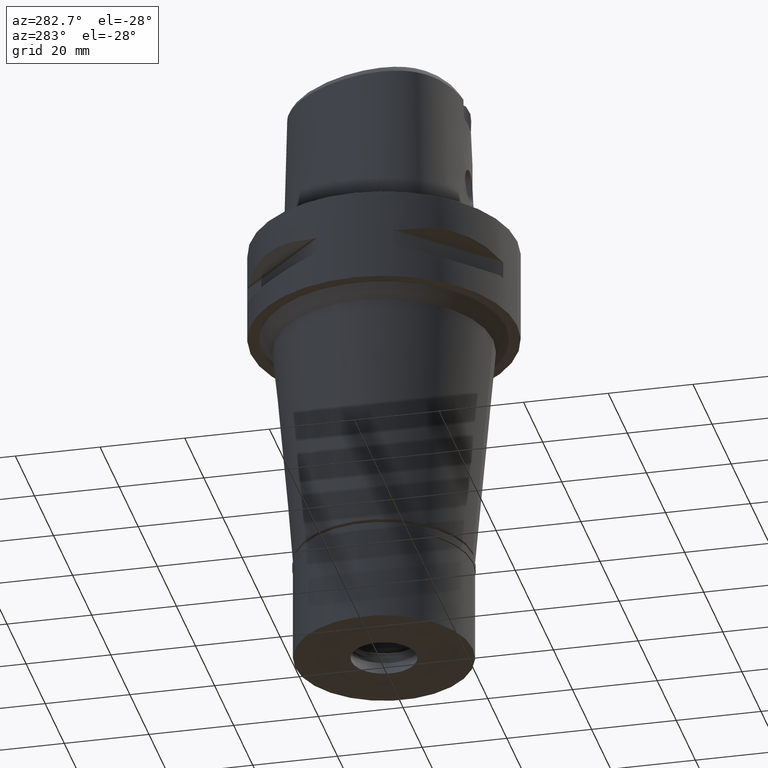
[diagram: clean part render]
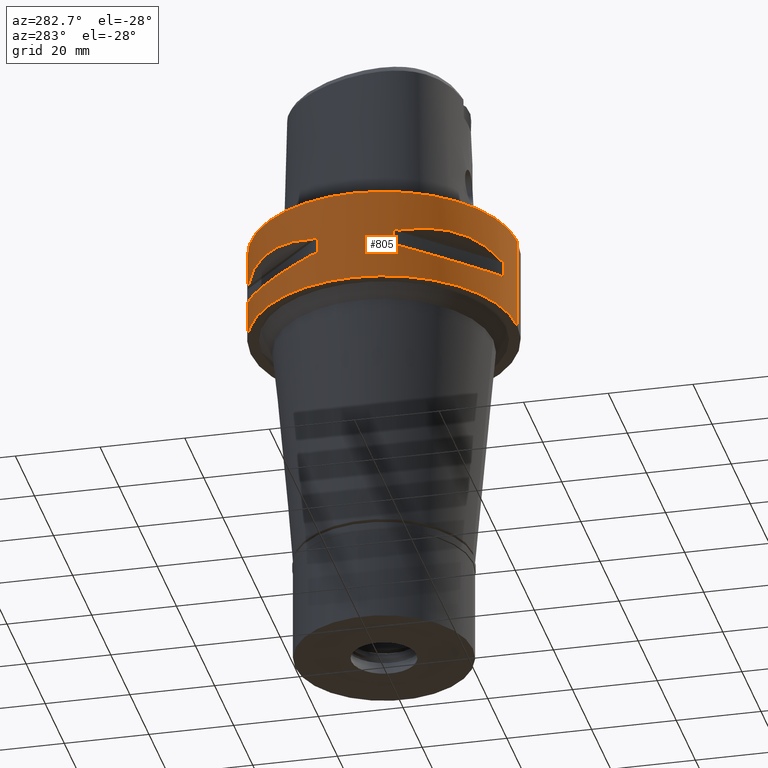
[diagram: same view with one face highlighted and labeled with its STEP entity id]
A machine part, auxiliary view. The second image highlights one B-rep face of the part: STEP entity #805.
In plain terms, the highlighted cylindrical surface (partial cylindrical patch) has radius 31.5 mm, axis along (0, 0, -1).
Its self-contained STEP definition (entity closure, byte-faithful):
#9 = VERTEX_POINT ( 'NONE', #4185 ) ;
#16 = LINE ( 'NONE', #1519, #2029 ) ;
#18 = CARTESIAN_POINT ( 'NONE',  ( -25.43927894891607622, 18.59229662064853983, -15.62866126334269623 ) ) ;
#45 = CARTESIAN_POINT ( 'NONE',  ( -18.86897208073744991, 25.32725744467937545, -15.69588095933747240 ) ) ;
#116 = EDGE_CURVE ( 'NONE', #3624, #4527, #4784, .T. ) ;
#164 = AXIS2_PLACEMENT_3D ( 'NONE', #1711, #4404, #1757 ) ;
#171 = AXIS2_PLACEMENT_3D ( 'NONE', #2725, #1590, #379 ) ;
#191 = EDGE_CURVE ( 'NONE', #2722, #2844, #1849, .T. ) ;
#194 = B_SPLINE_CURVE_WITH_KNOTS ( 'NONE', 3,
 ( #4942, #3792, #4602, #3414, #3390, #3011, #1505, #4147, #4171, #3033, #1480, #1142, #685, #4557, #2689, #3438, #4966, #1452, #325, #4216, #1525, #708, #3369, #278 ),
 .UNSPECIFIED., .F., .F.,
 ( 4, 1, 1, 1, 1, 1, 2, 2, 2, 1, 1, 1, 1, 1, 2, 2, 4 ),
 ( 0.0000000000000000000, 0.1250000000000055511, 0.1875000000000083267, 0.2187500000000097977, 0.2343750000000106304, 0.2421875000000108247, 0.2460937500000108524, 0.2500000000000108802, 0.5000000000000087708, 0.6250000000000075495, 0.6875000000000071054, 0.7187500000000067724, 0.7343750000000066613, 0.7421875000000065503, 0.7460937500000062172, 0.7500000000000059952, 1.000000000000000000 ),
 .UNSPECIFIED. ) ;
#229 = CARTESIAN_POINT ( 'NONE',  ( -8.981198972019999616, 30.19251670572000279, -9.950000000000001066 ) ) ;
#256 = CARTESIAN_POINT ( 'NONE',  ( -12.70092055730904868, 28.92474506844683901, -9.353547358226721897 ) ) ;
#278 = CARTESIAN_POINT ( 'NONE',  ( -10.44775724750000023, -29.71690375017999841, -14.05000000000000071 ) ) ;
#287 = CARTESIAN_POINT ( 'NONE',  ( -25.37277178159835955, -18.81455742174598456, -8.309746333092055792 ) ) ;
#325 = CARTESIAN_POINT ( 'NONE',  ( -17.05047092244293694, -26.48642424310493837, -15.42670883407686588 ) ) ;
#340 = DIRECTION ( 'NONE',  ( 0.0000000000000000000, 0.0000000000000000000, -1.000000000000000000 ) ) ;
#362 = CARTESIAN_POINT ( 'NONE',  ( -26.48642424310458665, 17.05047092244234008, -15.42670883407647509 ) ) ;
#379 = DIRECTION ( 'NONE',  ( -0.9584925938322735872, 0.2851174276831918153, 0.0000000000000000000 ) ) ;
#420 = EDGE_CURVE ( 'NONE', #1894, #2931, #2311, .T. ) ;
#451 = B_SPLINE_CURVE_WITH_KNOTS ( 'NONE', 3,
 ( #3811, #1897, #4595, #3502, #1214, #750, #3451, #2350, #2655, #1137, #45, #3092, #3916, #2685, #18, #2324, #4212, #3836, #362, #3859, #1998, #2731, #1918, #1598 ),
 .UNSPECIFIED., .F., .F.,
 ( 4, 1, 1, 1, 1, 1, 2, 2, 2, 1, 1, 1, 1, 1, 2, 2, 4 ),
 ( 0.0000000000000000000, 0.1249999999999950040, 0.1874999999999924505, 0.2187499999999911737, 0.2343749999999902855, 0.2421874999999899802, 0.2460937499999900080, 0.2499999999999900080, 0.4999999999999917843, 0.6249999999999925615, 0.6874999999999925615, 0.7187499999999924505, 0.7343749999999926725, 0.7421874999999927836, 0.7460937499999928946, 0.7499999999999931166, 1.000000000000000000 ),
 .UNSPECIFIED. ) ;
#490 = EDGE_CURVE ( 'NONE', #2482, #1703, #972, .T. ) ;
#533 = CARTESIAN_POINT ( 'NONE',  ( -18.81455742163205613, 25.37277178168287151, -8.309746333127383977 ) ) ;
#561 = DIRECTION ( 'NONE',  ( 0.0000000000000000000, 0.0000000000000000000, -1.000000000000000000 ) ) ;
#579 = ORIENTED_EDGE ( 'NONE', *, *, #4963, .T. ) ;
#589 = CARTESIAN_POINT ( 'NONE',  ( -23.90617837147178193, 20.64154884328073081, -8.160613588465007950 ) ) ;
#605 = AXIS2_PLACEMENT_3D ( 'NONE', #4842, #2978, #2542 ) ;
#635 = AXIS2_PLACEMENT_3D ( 'NONE', #4302, #761, #3059 ) ;
#671 = CARTESIAN_POINT ( 'NONE',  ( -27.88214534463898175, -14.84422749211551640, -8.906206096462614852 ) ) ;
#672 = CYLINDRICAL_SURFACE ( 'NONE', #3703, 31.50000000000000000 ) ;
#682 = CARTESIAN_POINT ( 'NONE',  ( -10.44775724750000023, -29.71690375017999841, -9.949999999998999201 ) ) ;
#685 = CARTESIAN_POINT ( 'NONE',  ( -21.46242677078364025, -23.08532645888299939, -15.83938991065501867 ) ) ;
#699 = B_SPLINE_CURVE_WITH_KNOTS ( 'NONE', 3,
 ( #4110, #1745, #671, #287, #4811, #1363, #4443, #989, #2156, #1767 ),
 .UNSPECIFIED., .F., .F.,
 ( 4, 2, 2, 2, 4 ),
 ( 0.0000000000000000000, 0.2500000000000000000, 0.5000000000000000000, 0.7500000000000000000, 1.000000000000000000 ),
 .UNSPECIFIED. ) ;
#708 = CARTESIAN_POINT ( 'NONE',  ( -14.89252659053665440, -27.86285265927818600, -15.10765629750852135 ) ) ;
#723 = CARTESIAN_POINT ( 'NONE',  ( 0.0000000000000000000, 31.50000000000000000, -22.00000000000000000 ) ) ;
#750 = CARTESIAN_POINT ( 'NONE',  ( -16.48208282228564769, 26.84474411198887012, -15.34094883777873619 ) ) ;
#761 = DIRECTION ( 'NONE',  ( 0.0000000000000000000, 0.0000000000000000000, -1.000000000000000000 ) ) ;
#780 = VECTOR ( 'NONE', #4736, 1000.000000000000000 ) ;
#805 = ADVANCED_FACE ( 'NONE', ( #1818, #1063, #2628 ), #672, .T. ) ;
#852 = VERTEX_POINT ( 'NONE', #4111 ) ;
#887 = VERTEX_POINT ( 'NONE', #4677 ) ;
#942 = CARTESIAN_POINT ( 'NONE',  ( -29.71690375017999841, -10.44775724750000023, -14.05000000000000071 ) ) ;
#968 = ORIENTED_EDGE ( 'NONE', *, *, #4893, .T. ) ;
#972 = CIRCLE ( 'NONE', #635, 31.50000000000000711 ) ;
#989 = CARTESIAN_POINT ( 'NONE',  ( -14.84430321566181910, -27.88210502990660444, -8.906184732002360604 ) ) ;
#1024 = CARTESIAN_POINT ( 'NONE',  ( -10.44775724750000023, -29.71690375017999841, -14.05000000000000071 ) ) ;
#1037 = DIRECTION ( 'NONE',  ( 0.0000000000000000000, -1.000000000000000000, 0.0000000000000000000 ) ) ;
#1051 = AXIS2_PLACEMENT_3D ( 'NONE', #1122, #1431, #4970 ) ;
#1063 = FACE_BOUND ( 'NONE', #4629, .T. ) ;
#1112 = EDGE_CURVE ( 'NONE', #4025, #887, #3785, .T. ) ;
#1122 = CARTESIAN_POINT ( 'NONE',  ( 0.0000000000000000000, 1.284348330606000068E-14, -14.05000000000000071 ) ) ;
#1132 = DIRECTION ( 'NONE',  ( 0.0000000000000000000, 0.0000000000000000000, 1.000000000000000000 ) ) ;
#1136 = LINE ( 'NONE', #1896, #1458 ) ;
#1137 = CARTESIAN_POINT ( 'NONE',  ( -16.89910283486545950, 26.58330558444438907, -15.40446471307224030 ) ) ;
#1142 = CARTESIAN_POINT ( 'NONE',  ( -23.89673728055121416, -20.65093790435243193, -15.83935804901394739 ) ) ;
#1171 = ORIENTED_EDGE ( 'NONE', *, *, #4722, .T. ) ;
#1180 = AXIS2_PLACEMENT_3D ( 'NONE', #4777, #2572, #1327 ) ;
#1198 = DIRECTION ( 'NONE',  ( 0.0000000000000000000, 0.0000000000000000000, -1.000000000000000000 ) ) ;
#1209 = CARTESIAN_POINT ( 'NONE',  ( -10.44775724750000023, 29.71690375017999841, -14.05000000000000071 ) ) ;
#1214 = CARTESIAN_POINT ( 'NONE',  ( -16.03138450077636534, 27.11872488589498786, -15.26880420107476333 ) ) ;
#1273 = EDGE_CURVE ( 'NONE', #3233, #887, #2121, .T. ) ;
#1285 = CARTESIAN_POINT ( 'NONE',  ( 0.0000000000000000000, 1.284348330606000068E-14, -9.950000000000001066 ) ) ;
#1304 = EDGE_CURVE ( 'NONE', #3233, #3672, #1708, .T. ) ;
#1305 = CIRCLE ( 'NONE', #4200, 31.50000000000000000 ) ;
#1327 = DIRECTION ( 'NONE',  ( -0.9433937698468619626, 0.3316748332540863653, 0.0000000000000000000 ) ) ;
#1355 = CARTESIAN_POINT ( 'NONE',  ( -28.92472615205409170, 12.70097436183466932, -9.353533115206117188 ) ) ;
#1363 = CARTESIAN_POINT ( 'NONE',  ( -20.64154884321404637, -23.90617837153842729, -8.160613588488562442 ) ) ;
#1371 = VECTOR ( 'NONE', #1198, 1000.000000000000000 ) ;
#1401 = CARTESIAN_POINT ( 'NONE',  ( -30.19251670572000279, 8.981198972019999616, -14.05000000000000071 ) ) ;
#1431 = DIRECTION ( 'NONE',  ( 0.0000000000000000000, 0.0000000000000000000, -1.000000000000000000 ) ) ;
#1452 = CARTESIAN_POINT ( 'NONE',  ( -17.14106442934810204, -26.42800887047570058, -15.43984550238532982 ) ) ;
#1458 = VECTOR ( 'NONE', #340, 1000.000000000000000 ) ;
#1480 = CARTESIAN_POINT ( 'NONE',  ( -25.32725744469575702, -18.86897208070564247, -15.69588095933118943 ) ) ;
#1489 = CARTESIAN_POINT ( 'NONE',  ( 0.0000000000000000000, 1.284348330606000068E-14, 4.875000000000000000 ) ) ;
#1505 = CARTESIAN_POINT ( 'NONE',  ( -26.70521063584532229, -16.70616724745790549, -15.37546661817682292 ) ) ;
#1519 = CARTESIAN_POINT ( 'NONE',  ( -8.981198972017999438, -30.19251670572000279, -14.05000000000000071 ) ) ;
#1525 = CARTESIAN_POINT ( 'NONE',  ( -16.96123479564984748, -26.54368690921626950, -15.41365572341332424 ) ) ;
#1536 = ORIENTED_EDGE ( 'NONE', *, *, #1112, .T. ) ;
#1558 = EDGE_LOOP ( 'NONE', ( #579, #1974, #1171, #2916 ) ) ;
#1590 = DIRECTION ( 'NONE',  ( 0.0000000000000000000, 0.0000000000000000000, -1.000000000000000000 ) ) ;
#1598 = CARTESIAN_POINT ( 'NONE',  ( -29.71690375017999841, 10.44775724750000023, -14.05000000000000071 ) ) ;
#1703 = VERTEX_POINT ( 'NONE', #4379 ) ;
#1708 = CIRCLE ( 'NONE', #164, 31.50000000000001776 ) ;
#1711 = CARTESIAN_POINT ( 'NONE',  ( 0.0000000000000000000, 1.284348330606000068E-14, -9.950000000000001066 ) ) ;
#1735 = CARTESIAN_POINT ( 'NONE',  ( -14.84422749199032943, 27.88214534470565198, -8.906206096497943037 ) ) ;
#1745 = CARTESIAN_POINT ( 'NONE',  ( -28.92474506841556092, -12.70092055739798553, -9.353547358203169182 ) ) ;
#1757 = DIRECTION ( 'NONE',  ( -0.2851174276831918153, 0.9584925938322735872, 0.0000000000000000000 ) ) ;
#1763 = AXIS2_PLACEMENT_3D ( 'NONE', #1285, #2923, #4041 ) ;
#1767 = CARTESIAN_POINT ( 'NONE',  ( -10.44775724750000023, -29.71690375017999841, -9.949999999998999201 ) ) ;
#1807 = CARTESIAN_POINT ( 'NONE',  ( 0.0000000000000000000, 31.50000000000000000, 0.0000000000000000000 ) ) ;
#1818 = FACE_OUTER_BOUND ( 'NONE', #1558, .T. ) ;
#1833 = VECTOR ( 'NONE', #561, 1000.000000000000000 ) ;
#1849 = CIRCLE ( 'NONE', #1763, 31.50000000000001776 ) ;
#1890 = EDGE_CURVE ( 'NONE', #2722, #1703, #4435, .T. ) ;
#1894 = VERTEX_POINT ( 'NONE', #1807 ) ;
#1896 = CARTESIAN_POINT ( 'NONE',  ( 0.0000000000000000000, -31.50000000000000000, 0.0000000000000000000 ) ) ;
#1897 = CARTESIAN_POINT ( 'NONE',  ( -11.58970337493613378, 29.31542262584994418, -14.35229357166721265 ) ) ;
#1918 = CARTESIAN_POINT ( 'NONE',  ( -28.91382665368626093, 12.73197616788979047, -14.65467361754097197 ) ) ;
#1974 = ORIENTED_EDGE ( 'NONE', *, *, #3894, .F. ) ;
#1998 = CARTESIAN_POINT ( 'NONE',  ( -26.54368690921649687, 16.96123479564916892, -15.41365572341313239 ) ) ;
#2019 = VERTEX_POINT ( 'NONE', #1024 ) ;
#2029 = VECTOR ( 'NONE', #3025, 1000.000000000000000 ) ;
#2052 = EDGE_CURVE ( 'NONE', #3366, #4527, #4239, .T. ) ;
#2081 = EDGE_LOOP ( 'NONE', ( #2591, #4486, #2700, #4473, #3698, #4292, #2547, #4841 ) ) ;
#2102 = EDGE_CURVE ( 'NONE', #3672, #3366, #4287, .T. ) ;
#2121 = LINE ( 'NONE', #4006, #3223 ) ;
#2135 = DIRECTION ( 'NONE',  ( -0.3316748332540863653, -0.9433937698468619626, 0.0000000000000000000 ) ) ;
#2146 = CARTESIAN_POINT ( 'NONE',  ( -29.71690375017999841, 10.44775724750000023, -9.949999999998999201 ) ) ;
#2149 = EDGE_CURVE ( 'NONE', #2482, #2019, #194, .T. ) ;
#2155 = CARTESIAN_POINT ( 'NONE',  ( -29.71690375017999841, 10.44775724750000023, -14.05000000000000071 ) ) ;
#2156 = CARTESIAN_POINT ( 'NONE',  ( -12.70097436174568983, -28.92472615208535558, -9.353533115229669903 ) ) ;
#2182 = DIRECTION ( 'NONE',  ( 0.0000000000000000000, 0.0000000000000000000, 1.000000000000000000 ) ) ;
#2225 = DIRECTION ( 'NONE',  ( 0.0000000000000000000, 0.0000000000000000000, -1.000000000000000000 ) ) ;
#2311 = LINE ( 'NONE', #3543, #1371 ) ;
#2324 = CARTESIAN_POINT ( 'NONE',  ( -26.01217882834653139, 17.76952662671834915, -15.52665221626015501 ) ) ;
#2350 = CARTESIAN_POINT ( 'NONE',  ( -16.80193241490443157, 26.64486562695815053, -15.38992683735661515 ) ) ;
#2399 = VERTEX_POINT ( 'NONE', #4000 ) ;
#2482 = VERTEX_POINT ( 'NONE', #942 ) ;
#2530 = CARTESIAN_POINT ( 'NONE',  ( -25.37272068398780434, 18.81462633032050746, -8.309724968596480466 ) ) ;
#2542 = DIRECTION ( 'NONE',  ( -0.2851174276831918153, -0.9584925938322735872, 0.0000000000000000000 ) ) ;
#2547 = ORIENTED_EDGE ( 'NONE', *, *, #191, .T. ) ;
#2572 = DIRECTION ( 'NONE',  ( 0.0000000000000000000, 0.0000000000000000000, 1.000000000000000000 ) ) ;
#2591 = ORIENTED_EDGE ( 'NONE', *, *, #4750, .T. ) ;
#2628 = FACE_BOUND ( 'NONE', #2081, .T. ) ;
#2631 = CIRCLE ( 'NONE', #605, 31.50000000000001776 ) ;
#2655 = CARTESIAN_POINT ( 'NONE',  ( -16.86571563436579169, 26.60451452154777030, -15.39949295785988426 ) ) ;
#2661 = EDGE_CURVE ( 'NONE', #2399, #2019, #2631, .T. ) ;
#2685 = CARTESIAN_POINT ( 'NONE',  ( -24.23018836745279714, 20.18579225685798306, -15.78559396978850415 ) ) ;
#2689 = CARTESIAN_POINT ( 'NONE',  ( -18.59229662065495958, -25.43927894891979946, -15.62866126334684580 ) ) ;
#2700 = ORIENTED_EDGE ( 'NONE', *, *, #2661, .T. ) ;
#2722 = VERTEX_POINT ( 'NONE', #4863 ) ;
#2725 = CARTESIAN_POINT ( 'NONE',  ( 0.0000000000000000000, 1.284348330606000068E-14, -14.05000000000000071 ) ) ;
#2731 = CARTESIAN_POINT ( 'NONE',  ( -27.86285265926284893, 14.89252659058025685, -15.10765629752004813 ) ) ;
#2774 = ORIENTED_EDGE ( 'NONE', *, *, #1304, .T. ) ;
#2844 = VERTEX_POINT ( 'NONE', #3069 ) ;
#2916 = ORIENTED_EDGE ( 'NONE', *, *, #420, .T. ) ;
#2923 = DIRECTION ( 'NONE',  ( 0.0000000000000000000, 0.0000000000000000000, 1.000000000000000000 ) ) ;
#2931 = VERTEX_POINT ( 'NONE', #723 ) ;
#2975 = CARTESIAN_POINT ( 'NONE',  ( 0.0000000000000000000, 1.284348330606000068E-14, 0.0000000000000000000 ) ) ;
#2978 = DIRECTION ( 'NONE',  ( 0.0000000000000000000, 0.0000000000000000000, -1.000000000000000000 ) ) ;
#3011 = CARTESIAN_POINT ( 'NONE',  ( -26.84474411198783628, -16.48208282228858224, -15.34094883777952667 ) ) ;
#3025 = DIRECTION ( 'NONE',  ( 0.0000000000000000000, 0.0000000000000000000, 1.000000000000000000 ) ) ;
#3033 = CARTESIAN_POINT ( 'NONE',  ( -26.58330558444411906, -16.89910283486596754, -15.40446471307235754 ) ) ;
#3059 = DIRECTION ( 'NONE',  ( -0.9433937698468619626, -0.3316748332540863653, 0.0000000000000000000 ) ) ;
#3064 = VERTEX_POINT ( 'NONE', #2155 ) ;
#3069 = CARTESIAN_POINT ( 'NONE',  ( -29.71690375017999841, -10.44775724750000023, -9.949999999998999201 ) ) ;
#3092 = CARTESIAN_POINT ( 'NONE',  ( -20.65093790435807364, 23.89673728056094859, -15.83935804902020550 ) ) ;
#3223 = VECTOR ( 'NONE', #3240, 1000.000000000000000 ) ;
#3233 = VERTEX_POINT ( 'NONE', #229 ) ;
#3240 = DIRECTION ( 'NONE',  ( 0.0000000000000000000, 0.0000000000000000000, -1.000000000000000000 ) ) ;
#3242 = CARTESIAN_POINT ( 'NONE',  ( -30.19251670572000279, -8.981198972017999438, -9.950000000000001066 ) ) ;
#3267 = CARTESIAN_POINT ( 'NONE',  ( -20.64154884328072370, 23.90617837147178193, -8.160627831309673397 ) ) ;
#3286 = VERTEX_POINT ( 'NONE', #682 ) ;
#3301 = CARTESIAN_POINT ( 'NONE',  ( -30.19251670572000279, 8.981198972017999438, -14.05000000000000071 ) ) ;
#3366 = VERTEX_POINT ( 'NONE', #4478 ) ;
#3369 = CARTESIAN_POINT ( 'NONE',  ( -12.73197616784617381, -28.91382665370159799, -14.65467361752943809 ) ) ;
#3390 = CARTESIAN_POINT ( 'NONE',  ( -27.11872488589304453, -16.03138450078185429, -15.26880420107623237 ) ) ;
#3414 = CARTESIAN_POINT ( 'NONE',  ( -27.64634172018421410, -15.11986997309601577, -15.11207862403482238 ) ) ;
#3438 = CARTESIAN_POINT ( 'NONE',  ( -17.76952662672209371, -26.01217882834868433, -15.52665221626257264 ) ) ;
#3447 = DIRECTION ( 'NONE',  ( 0.0000000000000000000, 1.000000000000000000, 0.0000000000000000000 ) ) ;
#3451 = CARTESIAN_POINT ( 'NONE',  ( -16.70616724745637072, 26.70521063584585164, -15.37546661817639126 ) ) ;
#3463 = CIRCLE ( 'NONE', #4120, 31.50000000000000711 ) ;
#3502 = CARTESIAN_POINT ( 'NONE',  ( -15.11986997308662595, 27.64634172018752523, -15.11207862403231239 ) ) ;
#3543 = CARTESIAN_POINT ( 'NONE',  ( 0.0000000000000000000, 31.50000000000000000, 0.0000000000000000000 ) ) ;
#3624 = VERTEX_POINT ( 'NONE', #1401 ) ;
#3672 = VERTEX_POINT ( 'NONE', #4143 ) ;
#3687 = CARTESIAN_POINT ( 'NONE',  ( 0.0000000000000000000, 1.284348330606000068E-14, -9.950000000000001066 ) ) ;
#3698 = ORIENTED_EDGE ( 'NONE', *, *, #490, .T. ) ;
#3703 = AXIS2_PLACEMENT_3D ( 'NONE', #1489, #3728, #4858 ) ;
#3728 = DIRECTION ( 'NONE',  ( 0.0000000000000000000, 0.0000000000000000000, -1.000000000000000000 ) ) ;
#3785 = CIRCLE ( 'NONE', #1051, 31.50000000000000711 ) ;
#3788 = ORIENTED_EDGE ( 'NONE', *, *, #1273, .F. ) ;
#3792 = CARTESIAN_POINT ( 'NONE',  ( -29.31542262584746794, -11.58970337494326941, -14.35229357166913999 ) ) ;
#3811 = CARTESIAN_POINT ( 'NONE',  ( -10.44775724750000023, 29.71690375017999841, -14.05000000000000071 ) ) ;
#3836 = CARTESIAN_POINT ( 'NONE',  ( -26.42800887047508240, 17.14106442934706820, -15.43984550238465836 ) ) ;
#3859 = CARTESIAN_POINT ( 'NONE',  ( -26.52527364208584615, 16.98999780422065342, -15.41788098766309467 ) ) ;
#3883 = CARTESIAN_POINT ( 'NONE',  ( 0.0000000000000000000, 1.284348330606000068E-14, -22.00000000000000000 ) ) ;
#3884 = ORIENTED_EDGE ( 'NONE', *, *, #2102, .T. ) ;
#3894 = EDGE_CURVE ( 'NONE', #9, #4408, #1136, .T. ) ;
#3916 = CARTESIAN_POINT ( 'NONE',  ( -23.08532645888017854, 21.46242677077873751, -15.83938991065184076 ) ) ;
#3957 = EDGE_CURVE ( 'NONE', #2399, #852, #16, .T. ) ;
#3975 = ORIENTED_EDGE ( 'NONE', *, *, #2052, .T. ) ;
#4000 = CARTESIAN_POINT ( 'NONE',  ( -8.981198972019999616, -30.19251670572000279, -14.05000000000000071 ) ) ;
#4006 = CARTESIAN_POINT ( 'NONE',  ( -8.981198972017999438, 30.19251670572000279, -9.950000000000001066 ) ) ;
#4008 = CARTESIAN_POINT ( 'NONE',  ( -10.44775724750000023, 29.71690375017999841, -9.949999999998999201 ) ) ;
#4025 = VERTEX_POINT ( 'NONE', #1209 ) ;
#4040 = ORIENTED_EDGE ( 'NONE', *, *, #116, .F. ) ;
#4041 = DIRECTION ( 'NONE',  ( -0.9584925938322735872, -0.2851174276831918153, 0.0000000000000000000 ) ) ;
#4110 = CARTESIAN_POINT ( 'NONE',  ( -29.71690375017999841, -10.44775724750000023, -9.949999999998999201 ) ) ;
#4111 = CARTESIAN_POINT ( 'NONE',  ( -8.981198972017999438, -30.19251670572000279, -9.950000000000001066 ) ) ;
#4120 = AXIS2_PLACEMENT_3D ( 'NONE', #3687, #2182, #2135 ) ;
#4143 = CARTESIAN_POINT ( 'NONE',  ( -10.44775724750000023, 29.71690375017999841, -9.949999999998999201 ) ) ;
#4147 = CARTESIAN_POINT ( 'NONE',  ( -26.64486562695783789, -16.80193241490531975, -15.38992683735687272 ) ) ;
#4171 = CARTESIAN_POINT ( 'NONE',  ( -26.60451452154760332, -16.86571563436626064, -15.39949295786003347 ) ) ;
#4185 = CARTESIAN_POINT ( 'NONE',  ( 0.0000000000000000000, -31.50000000000000000, 0.0000000000000000000 ) ) ;
#4200 = AXIS2_PLACEMENT_3D ( 'NONE', #3883, #1132, #3447 ) ;
#4212 = CARTESIAN_POINT ( 'NONE',  ( -26.29071741523646111, 17.35163608579689409, -15.46976201925398087 ) ) ;
#4216 = CARTESIAN_POINT ( 'NONE',  ( -16.98999780422095540, -26.52527364208602734, -15.41788098766330783 ) ) ;
#4239 = CIRCLE ( 'NONE', #1180, 31.50000000000000711 ) ;
#4274 = CIRCLE ( 'NONE', #4987, 31.50000000000000000 ) ;
#4287 = B_SPLINE_CURVE_WITH_KNOTS ( 'NONE', 3,
 ( #4008, #256, #1735, #533, #3267, #589, #2530, #4802, #1355, #2146 ),
 .UNSPECIFIED., .F., .F.,
 ( 4, 2, 2, 2, 4 ),
 ( 0.0000000000000000000, 0.2500000000000000000, 0.5000000000000000000, 0.7500000000000000000, 1.000000000000000000 ),
 .UNSPECIFIED. ) ;
#4292 = ORIENTED_EDGE ( 'NONE', *, *, #1890, .F. ) ;
#4302 = CARTESIAN_POINT ( 'NONE',  ( 0.0000000000000000000, 1.284348330606000068E-14, -14.05000000000000071 ) ) ;
#4379 = CARTESIAN_POINT ( 'NONE',  ( -30.19251670572000279, -8.981198972017999438, -14.05000000000000071 ) ) ;
#4404 = DIRECTION ( 'NONE',  ( 0.0000000000000000000, 0.0000000000000000000, 1.000000000000000000 ) ) ;
#4408 = VERTEX_POINT ( 'NONE', #4857 ) ;
#4435 = LINE ( 'NONE', #3242, #1833 ) ;
#4443 = CARTESIAN_POINT ( 'NONE',  ( -18.81462633020657194, -25.37272068407227010, -8.309724968631808650 ) ) ;
#4454 = EDGE_CURVE ( 'NONE', #2844, #3286, #699, .T. ) ;
#4457 = ORIENTED_EDGE ( 'NONE', *, *, #4512, .F. ) ;
#4473 = ORIENTED_EDGE ( 'NONE', *, *, #2149, .F. ) ;
#4478 = CARTESIAN_POINT ( 'NONE',  ( -29.71690375017999841, 10.44775724750000023, -9.949999999998999201 ) ) ;
#4486 = ORIENTED_EDGE ( 'NONE', *, *, #3957, .F. ) ;
#4512 = EDGE_CURVE ( 'NONE', #4025, #3064, #451, .T. ) ;
#4527 = VERTEX_POINT ( 'NONE', #4937 ) ;
#4557 = CARTESIAN_POINT ( 'NONE',  ( -20.18579225686653444, -24.23018836745773541, -15.78559396979401974 ) ) ;
#4595 = CARTESIAN_POINT ( 'NONE',  ( -13.25636937902232404, 28.62019653469382163, -14.74888225540932751 ) ) ;
#4602 = CARTESIAN_POINT ( 'NONE',  ( -28.62019653468943048, -13.25636937903484203, -14.74888225541266884 ) ) ;
#4629 = EDGE_LOOP ( 'NONE', ( #3975, #4040, #968, #4457, #1536, #3788, #2774, #3884 ) ) ;
#4677 = CARTESIAN_POINT ( 'NONE',  ( -8.981198972017999438, 30.19251670572000279, -14.05000000000000071 ) ) ;
#4722 = EDGE_CURVE ( 'NONE', #9, #1894, #4274, .T. ) ;
#4736 = DIRECTION ( 'NONE',  ( 0.0000000000000000000, 0.0000000000000000000, 1.000000000000000000 ) ) ;
#4750 = EDGE_CURVE ( 'NONE', #3286, #852, #3463, .T. ) ;
#4777 = CARTESIAN_POINT ( 'NONE',  ( 0.0000000000000000000, 1.284348330606000068E-14, -9.950000000000001066 ) ) ;
#4784 = LINE ( 'NONE', #3301, #780 ) ;
#4802 = CARTESIAN_POINT ( 'NONE',  ( -27.88210502983995553, 14.84430321578704870, -8.906184731967030643 ) ) ;
#4811 = CARTESIAN_POINT ( 'NONE',  ( -23.90617837153842729, -20.64154884321405703, -8.160627831286120681 ) ) ;
#4841 = ORIENTED_EDGE ( 'NONE', *, *, #4454, .T. ) ;
#4842 = CARTESIAN_POINT ( 'NONE',  ( 0.0000000000000000000, 1.284348330606000068E-14, -14.05000000000000071 ) ) ;
#4844 = CIRCLE ( 'NONE', #171, 31.50000000000001776 ) ;
#4857 = CARTESIAN_POINT ( 'NONE',  ( 0.0000000000000000000, -31.50000000000000000, -22.00000000000000000 ) ) ;
#4858 = DIRECTION ( 'NONE',  ( 0.0000000000000000000, -1.000000000000000000, 0.0000000000000000000 ) ) ;
#4863 = CARTESIAN_POINT ( 'NONE',  ( -30.19251670572000279, -8.981198972019999616, -9.950000000000001066 ) ) ;
#4893 = EDGE_CURVE ( 'NONE', #3624, #3064, #4844, .T. ) ;
#4937 = CARTESIAN_POINT ( 'NONE',  ( -30.19251670572000279, 8.981198972017999438, -9.950000000000001066 ) ) ;
#4942 = CARTESIAN_POINT ( 'NONE',  ( -29.71690375017999841, -10.44775724750000023, -14.05000000000000071 ) ) ;
#4963 = EDGE_CURVE ( 'NONE', #2931, #4408, #1305, .T. ) ;
#4966 = CARTESIAN_POINT ( 'NONE',  ( -17.35163608579889072, -26.29071741523761929, -15.46976201925527761 ) ) ;
#4970 = DIRECTION ( 'NONE',  ( -0.3316748332540863653, 0.9433937698468619626, 0.0000000000000000000 ) ) ;
#4987 = AXIS2_PLACEMENT_3D ( 'NONE', #2975, #2225, #1037 ) ;